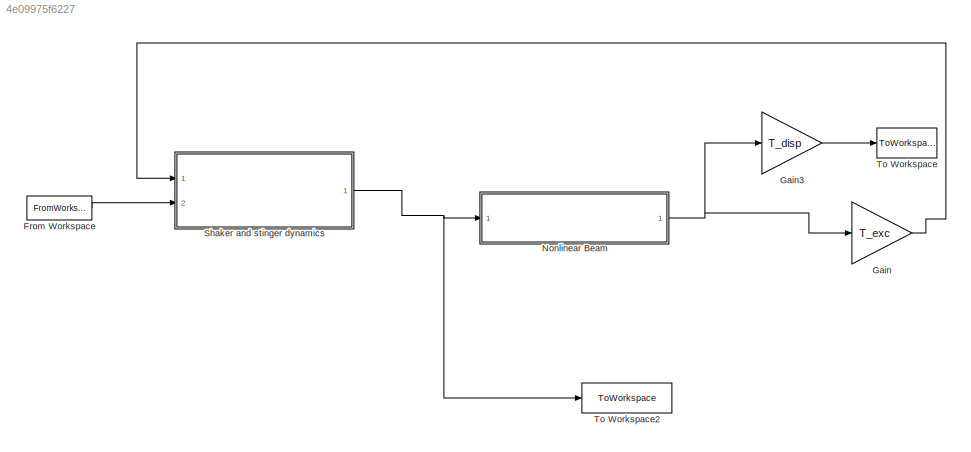
MODEL slx_4e09975f6227
KIND model
CONFIG AbsTol = auto
CONFIG EnableMultiTasking = on
CONFIG FixedStep = step_size
CONFIG MaxStep = auto
CONFIG MinStep = auto
CONFIG RelTol = 1e-7
CONFIG SampleTimeConstraint = Unconstrained
CONFIG Solver = FixedStepAuto
CONFIG SolverName = FixedStepAuto
CONFIG StartTime = 0.0
CONFIG StopTime = simtime
BLOCK [FromWorkspace] From Workspace
  SampleTime = 0
  VariableName = ext_sig
  ZeroCross = on
BLOCK [Gain] Gain
  Gain = T_exc
  Multiplication = Matrix(K*u)
  OutDataTypeStr = Inherit: Inherit via internal rule
  ParamDataTypeStr = Inherit: Inherit via internal rule
  SaturateOnIntegerOverflow = off
BLOCK [Gain] Gain3
  Gain = T_disp
  Multiplication = Matrix(K*u)
  OutDataTypeStr = Inherit: Inherit via internal rule
  ParamDataTypeStr = Inherit: Inherit via internal rule
  SaturateOnIntegerOverflow = off
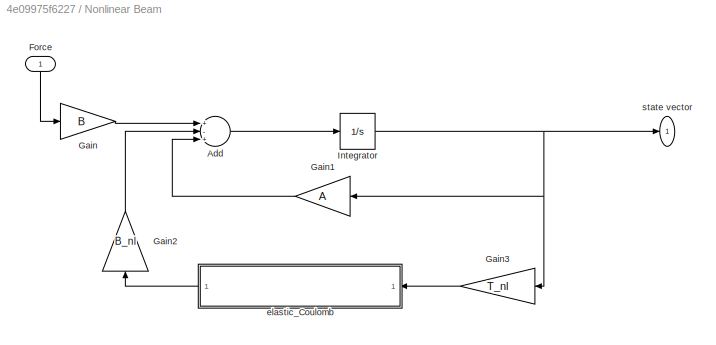
BLOCK [SubSystem] Nonlinear Beam
  Ports = [1, 1]
  RequestExecContextInheritance = off
BLOCK [Sum] Nonlinear Beam/Add
  InputSameDT = off
  Inputs = +-+
  OutDataTypeStr = Inherit: Inherit via internal rule
  Ports = [3, 1]
  SaturateOnIntegerOverflow = off
BLOCK [Inport] Nonlinear Beam/Force
  IconDisplay = Port number
BLOCK [Gain] Nonlinear Beam/Gain
  Gain = B
  OutDataTypeStr = Inherit: Inherit via internal rule
  ParamDataTypeStr = Inherit: Inherit via internal rule
  SaturateOnIntegerOverflow = off
BLOCK [Gain] Nonlinear Beam/Gain1
  Gain = A
  Multiplication = Matrix(K*u) (u vector)
  OutDataTypeStr = Inherit: Inherit via internal rule
  ParamDataTypeStr = Inherit: Inherit via internal rule
  SaturateOnIntegerOverflow = off
BLOCK [Gain] Nonlinear Beam/Gain2
  Gain = B_nl
  OutDataTypeStr = Inherit: Inherit via internal rule
  ParamDataTypeStr = Inherit: Inherit via internal rule
  SaturateOnIntegerOverflow = off
BLOCK [Gain] Nonlinear Beam/Gain3
  Gain = T_nl
  Multiplication = Matrix(K*u)
  OutDataTypeStr = Inherit: Inherit via internal rule
  ParamDataTypeStr = Inherit: Inherit via internal rule
  SaturateOnIntegerOverflow = off
BLOCK [Integrator] Nonlinear Beam/Integrator
  InitialCondition = x0beam
  Ports = [1, 1]
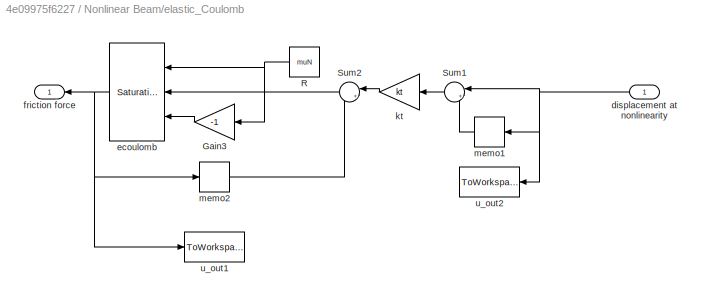
BLOCK [SubSystem] Nonlinear Beam/elastic_Coulomb
  Ports = [1, 1]
  RequestExecContextInheritance = off
BLOCK [Gain] Nonlinear Beam/elastic_Coulomb/Gain3
  Gain = -1
  OutDataTypeStr = Inherit: Inherit via internal rule
  ParamDataTypeStr = Inherit: Inherit via internal rule
  SaturateOnIntegerOverflow = off
BLOCK [Constant] Nonlinear Beam/elastic_Coulomb/R
  Value = muN
BLOCK [Sum] Nonlinear Beam/elastic_Coulomb/Sum1
  IconShape = round
  InputSameDT = off
  Inputs = |+-
  OutDataTypeStr = Inherit: Inherit via internal rule
  Ports = [2, 1]
  SaturateOnIntegerOverflow = off
BLOCK [Sum] Nonlinear Beam/elastic_Coulomb/Sum2
  IconShape = round
  InputSameDT = off
  Inputs = |++
  OutDataTypeStr = Inherit: Inherit via internal rule
  Ports = [2, 1]
  SaturateOnIntegerOverflow = off
BLOCK [Inport] Nonlinear Beam/elastic_Coulomb/displacement at nonlinearity
  IconDisplay = Port number
BLOCK [Reference] Nonlinear Beam/elastic_Coulomb/ecoulomb  REF=simulink/Discontinuities/Saturation
Dynamic
  Ports = [3, 1]
  SourceBlock = simulink/Discontinuities/Saturation\nDynamic
  SourceProductBaseCode = SL
  SourceProductName = Simulink
  SourceType = Saturation Dynamic
BLOCK [Outport] Nonlinear Beam/elastic_Coulomb/friction force
  IconDisplay = Port number
BLOCK [Gain] Nonlinear Beam/elastic_Coulomb/kt
  Gain = kt
  OutDataTypeStr = Inherit: Inherit via internal rule
  ParamDataTypeStr = Inherit: Inherit via internal rule
  SaturateOnIntegerOverflow = off
BLOCK [Memory] Nonlinear Beam/elastic_Coulomb/memo1
BLOCK [Memory] Nonlinear Beam/elastic_Coulomb/memo2
BLOCK [ToWorkspace] Nonlinear Beam/elastic_Coulomb/u_out1
  MaxDataPoints = inf
  Ports = [1]
  SampleTime = -1
  VariableName = fr
BLOCK [ToWorkspace] Nonlinear Beam/elastic_Coulomb/u_out2
  MaxDataPoints = 1
  Ports = [1]
  SampleTime = -1
  VariableName = unl
BLOCK [Outport] Nonlinear Beam/state vector
  IconDisplay = Port number
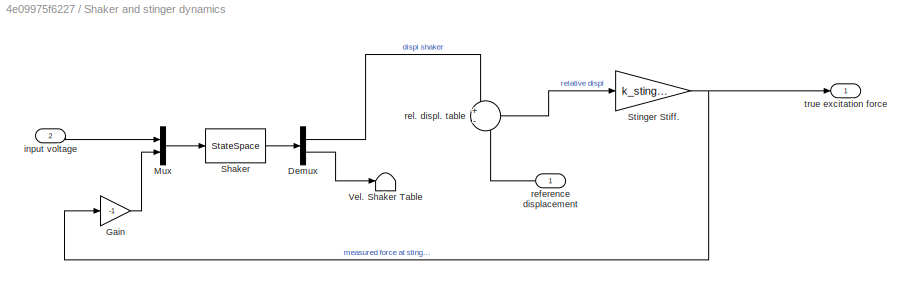
BLOCK [SubSystem] Shaker and stinger dynamics
  Ports = [2, 1]
  RequestExecContextInheritance = off
BLOCK [Demux] Shaker and stinger dynamics/Demux
  DisplayOption = bar
  Outputs = 2
  Ports = [1, 2]
BLOCK [Gain] Shaker and stinger dynamics/Gain
  Gain = -1
  OutDataTypeStr = Inherit: Inherit via internal rule
  ParamDataTypeStr = Inherit: Inherit via internal rule
  SaturateOnIntegerOverflow = off
BLOCK [Mux] Shaker and stinger dynamics/Mux
  DisplayOption = bar
  Inputs = 2
  Ports = [2, 1]
BLOCK [StateSpace] Shaker and stinger dynamics/Shaker
  A = A_shaker
  B = B_shaker
  C = C_shaker
  D = [0 0;0 0]
  InitialCondition = 0
  Ports = [1, 1]
BLOCK [Gain] Shaker and stinger dynamics/Stinger Stiff.
  Gain = k_stinger
  OutDataTypeStr = Inherit: Inherit via internal rule
  ParamDataTypeStr = Inherit: Inherit via internal rule
  SaturateOnIntegerOverflow = off
BLOCK [Terminator] Shaker and stinger dynamics/Vel. Shaker Table
BLOCK [Inport] Shaker and stinger dynamics/input voltage
  IconDisplay = Port number
  Port = 2
BLOCK [Inport] Shaker and stinger dynamics/reference displacement
  IconDisplay = Port number
BLOCK [Sum] Shaker and stinger dynamics/rel. displ. table
  IconShape = round
  InputSameDT = off
  Inputs = +-
  OutDataTypeStr = Inherit: Inherit via internal rule
  Ports = [2, 1]
  SaturateOnIntegerOverflow = off
BLOCK [Outport] Shaker and stinger dynamics/true excitation force
  IconDisplay = Port number
BLOCK [ToWorkspace] To Workspace
  MaxDataPoints = inf
  Ports = [1]
  SampleTime = -1
  SaveFormat = Structure With Time
  VariableName = displacement
BLOCK [ToWorkspace] To Workspace2
  MaxDataPoints = inf
  Ports = [1]
  SampleTime = -1
  SaveFormat = Structure With Time
  VariableName = excitation_force
LINE From Workspace:1 -> Shaker and stinger dynamics:2
LINE Gain3:1 -> To Workspace:1
LINE Gain:1 -> Shaker and stinger dynamics:1
LINE Nonlinear Beam/Add:1 -> Nonlinear Beam/Integrator:1
LINE Nonlinear Beam/Force:1 -> Nonlinear Beam/Gain:1
LINE Nonlinear Beam/Gain1:1 -> Nonlinear Beam/Add:3
LINE Nonlinear Beam/Gain2:1 -> Nonlinear Beam/Add:2
LINE Nonlinear Beam/Gain3:1 -> Nonlinear Beam/elastic_Coulomb:1
LINE Nonlinear Beam/Gain:1 -> Nonlinear Beam/Add:1
NET Nonlinear Beam/Integrator:1 -> Nonlinear Beam/Gain1:1, Nonlinear Beam/Gain3:1, Nonlinear Beam/state vector:1
LINE Nonlinear Beam/elastic_Coulomb/Gain3:1 -> Nonlinear Beam/elastic_Coulomb/ecoulomb:3
NET Nonlinear Beam/elastic_Coulomb/R:1 -> Nonlinear Beam/elastic_Coulomb/Gain3:1, Nonlinear Beam/elastic_Coulomb/ecoulomb:1
LINE Nonlinear Beam/elastic_Coulomb/Sum1:1 -> Nonlinear Beam/elastic_Coulomb/kt:1
LINE Nonlinear Beam/elastic_Coulomb/Sum2:1 -> Nonlinear Beam/elastic_Coulomb/ecoulomb:2
NET Nonlinear Beam/elastic_Coulomb/displacement at nonlinearity:1 -> Nonlinear Beam/elastic_Coulomb/Sum1:1, Nonlinear Beam/elastic_Coulomb/memo1:1, Nonlinear Beam/elastic_Coulomb/u_out2:1
NET Nonlinear Beam/elastic_Coulomb/ecoulomb:1 -> Nonlinear Beam/elastic_Coulomb/friction force:1, Nonlinear Beam/elastic_Coulomb/memo2:1, Nonlinear Beam/elastic_Coulomb/u_out1:1
LINE Nonlinear Beam/elastic_Coulomb/kt:1 -> Nonlinear Beam/elastic_Coulomb/Sum2:1
LINE Nonlinear Beam/elastic_Coulomb/memo1:1 -> Nonlinear Beam/elastic_Coulomb/Sum1:2
LINE Nonlinear Beam/elastic_Coulomb/memo2:1 -> Nonlinear Beam/elastic_Coulomb/Sum2:2
LINE Nonlinear Beam/elastic_Coulomb:1 -> Nonlinear Beam/Gain2:1
NET Nonlinear Beam:1 -> Gain3:1, Gain:1
LINE Shaker and stinger dynamics/Demux:1 -> Shaker and stinger dynamics/rel. displ. table:1
LINE Shaker and stinger dynamics/Demux:2 -> Shaker and stinger dynamics/Vel. Shaker Table:1
LINE Shaker and stinger dynamics/Gain:1 -> Shaker and stinger dynamics/Mux:2
LINE Shaker and stinger dynamics/Mux:1 -> Shaker and stinger dynamics/Shaker:1
LINE Shaker and stinger dynamics/Shaker:1 -> Shaker and stinger dynamics/Demux:1
NET Shaker and stinger dynamics/Stinger Stiff.:1 -> Shaker and stinger dynamics/Gain:1, Shaker and stinger dynamics/true excitation force:1
LINE Shaker and stinger dynamics/input voltage:1 -> Shaker and stinger dynamics/Mux:1
LINE Shaker and stinger dynamics/reference displacement:1 -> Shaker and stinger dynamics/rel. displ. table:2
LINE Shaker and stinger dynamics/rel. displ. table:1 -> Shaker and stinger dynamics/Stinger Stiff.:1
NET Shaker and stinger dynamics:1 -> Nonlinear Beam:1, To Workspace2:1
note: NET lines group one-source signal fan-out (src -> all destinations, sorted); 1:1 wires keep LINE
